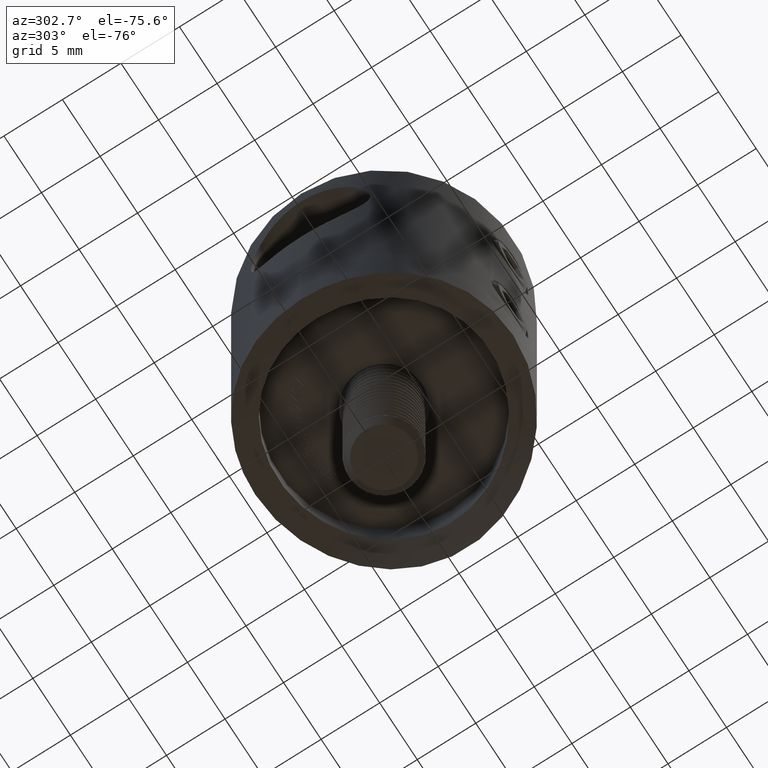
[diagram: clean part render]
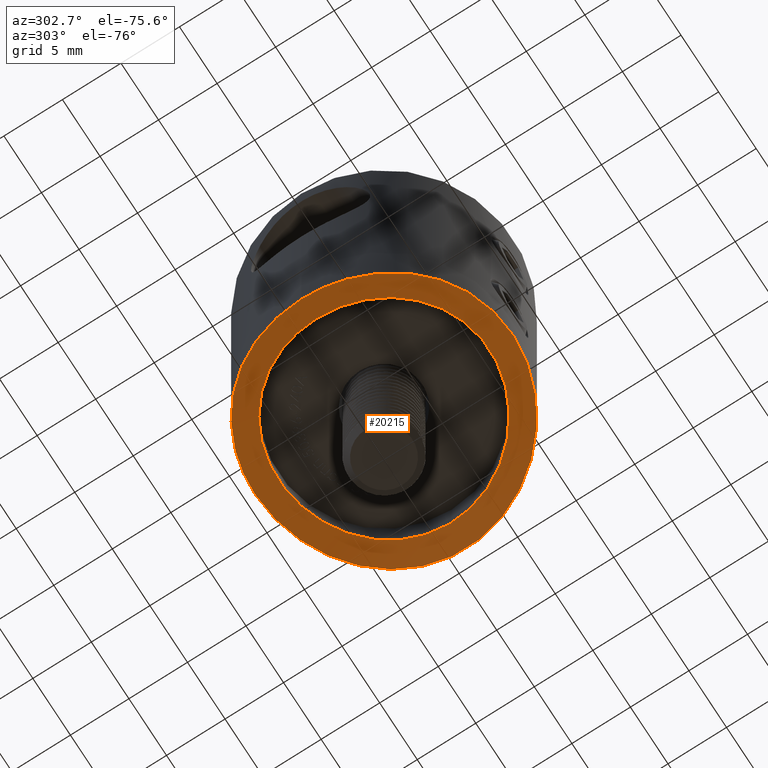
[diagram: same view with one face highlighted and labeled with its STEP entity id]
A machine part, auxiliary view. The second image highlights one B-rep face of the part: STEP entity #20215.
In plain terms, the highlighted cylindrical surface (partial cylindrical patch) has radius 24.15 mm, axis along (0, 1, 0).
Its self-contained STEP definition (entity closure, byte-faithful):
#199 = CARTESIAN_POINT ( 'NONE',  ( -5.955481066850367700, 6.772949348052264000, -4.841934236872190500 ) ) ;
#276 = CARTESIAN_POINT ( 'NONE',  ( -2.917733927521076500, 8.519060988494834100, -4.275214090765128800 ) ) ;
#338 = CARTESIAN_POINT ( 'NONE',  ( -10.62705216481736800, 2.862935051191474800, -6.563553041863481300 ) ) ;
#357 = CARTESIAN_POINT ( 'NONE',  ( 8.705901119531875000, -2.358470419391077500, -5.723444286782619600 ) ) ;
#386 = EDGE_LOOP ( 'NONE', ( #20394 ) ) ;
#414 = CARTESIAN_POINT ( 'NONE',  ( -8.716423519987754900, -6.719375433729545900, -5.726576771034943100 ) ) ;
#434 = CARTESIAN_POINT ( 'NONE',  ( 8.069453861627772900, -3.996355480198275200, -5.487570248137029000 ) ) ;
#490 = CARTESIAN_POINT ( 'NONE',  ( -4.586925025805655300, 10.00440817799939500, -4.537239825038970900 ) ) ;
#565 = CARTESIAN_POINT ( 'NONE',  ( -10.91125768141332700, 1.441902811846360800, -6.705428076010765200 ) ) ;
#643 = CARTESIAN_POINT ( 'NONE',  ( -5.540353854638258500, 9.509623176622014300, -4.741887871326858000 ) ) ;
#729 = CARTESIAN_POINT ( 'NONE',  ( -8.999999999999998200, 0.0000000000000000000, -5.839678717162483300 ) ) ;
#935 = DIRECTION ( 'NONE',  ( -0.0000000000000000000, 1.000000000000000000, -0.0000000000000000000 ) ) ;
#1604 = VERTEX_POINT ( 'NONE', #11507 ) ;
#1617 = CARTESIAN_POINT ( 'NONE',  ( -5.952661801843511600, -6.775232575217426500, -4.841242703613031200 ) ) ;
#1697 = CARTESIAN_POINT ( 'NONE',  ( -2.351721421240856400, -8.692363999212457100, -4.213088095409313300 ) ) ;
#1775 = CARTESIAN_POINT ( 'NONE',  ( -8.419670604379318100, -3.193089259846869400, -5.614933931759304100 ) ) ;
#1914 = CARTESIAN_POINT ( 'NONE',  ( 10.92542246693628300, 1.470415726918199400, -6.712044220759203500 ) ) ;
#1935 = CARTESIAN_POINT ( 'NONE',  ( 4.001728315777034700, 8.066765406957495400, -4.432402174724337000 ) ) ;
#1992 = CARTESIAN_POINT ( 'NONE',  ( 6.430387103793345100, 8.931858968524522900, -4.969817532866156500 ) ) ;
#2013 = CARTESIAN_POINT ( 'NONE',  ( 8.882115221764351500, -1.482161746522389300, -5.792606766629381500 ) ) ;
#2088 = CARTESIAN_POINT ( 'NONE',  ( 8.985262616755441900, -0.5942851337835611800, -5.833743530354812600 ) ) ;
#2147 = CARTESIAN_POINT ( 'NONE',  ( -8.287454945787276400, 7.267723683256857500, -5.560356767623069600 ) ) ;
#2164 = CARTESIAN_POINT ( 'NONE',  ( 8.707357408751676100, 2.352902298193428900, -5.724009966248377000 ) ) ;
#2211 = CARTESIAN_POINT ( 'NONE',  ( -7.286900198823986800, 8.270598678874801400, -5.219522258898293500 ) ) ;
#2226 = CARTESIAN_POINT ( 'NONE',  ( 4.770326956018101900, 7.637333640570379800, -4.574534365057011200 ) ) ;
#2285 = CARTESIAN_POINT ( 'NONE',  ( -3.565228295584622800, -10.41258127874622700, -4.362028299791797200 ) ) ;
#2361 = CARTESIAN_POINT ( 'NONE',  ( -4.905336668675545300, -9.872005679843932000, -4.593797026062112800 ) ) ;
#2377 = ORIENTED_EDGE ( 'NONE', *, *, #5464, .T. ) ;
#2442 = CARTESIAN_POINT ( 'NONE',  ( -3.596995005784352300, 10.41987925390194600, -4.359967933075471300 ) ) ;
#2550 = CYLINDRICAL_SURFACE ( 'NONE', #10816, 24.14999999999999900 ) ;
#3352 = CARTESIAN_POINT ( 'NONE',  ( -8.694337786926587000, -2.344497970514962200, -5.719141017561555400 ) ) ;
#3508 = CARTESIAN_POINT ( 'NONE',  ( -1.187097216402585300, -8.941112256603400300, -4.122128428594585600 ) ) ;
#3565 = CARTESIAN_POINT ( 'NONE',  ( 2.876291431198781700, 10.62353627960885100, -4.269323796662688700 ) ) ;
#3640 = CARTESIAN_POINT ( 'NONE',  ( 8.718833033539631600, 6.716238922139558200, -5.727511786381569400 ) ) ;
#3723 = CARTESIAN_POINT ( 'NONE',  ( 10.70943195267321000, 2.537678441767839300, -6.604283540190819800 ) ) ;
#3743 = CARTESIAN_POINT ( 'NONE',  ( -7.156723709875413100, 5.488278765217980700, -5.182273233512183300 ) ) ;
#3818 = CARTESIAN_POINT ( 'NONE',  ( 8.067936344374585300, 3.999436646844154000, -5.487030815150164100 ) ) ;
#3899 = CARTESIAN_POINT ( 'NONE',  ( 7.790570761488595500, -4.515966115826064000, -5.390618970679129000 ) ) ;
#3977 = CARTESIAN_POINT ( 'NONE',  ( 8.195380129416308900, 3.731275948257880300, -5.532764901327007000 ) ) ;
#4029 = CARTESIAN_POINT ( 'NONE',  ( 7.290707075603656100, -8.267210776175723200, -5.220738157115473400 ) ) ;
#4051 = CARTESIAN_POINT ( 'NONE',  ( 6.161363320520977500, -6.566798266884279500, -4.898215239517438300 ) ) ;
#4107 = CARTESIAN_POINT ( 'NONE',  ( -10.99852675633061600, -0.7508881387390133900, -6.749885771269953600 ) ) ;
#4176 = CARTESIAN_POINT ( 'NONE',  ( -9.537197385377799800, 5.527080732680000000, -6.058844551614365400 ) ) ;
#4254 = CARTESIAN_POINT ( 'NONE',  ( -1.466852744322146900, 10.92647259168840400, -4.133755088964415200 ) ) ;
#4542 = DIRECTION ( 'NONE',  ( 0.0000000000000000000, 0.0000000000000000000, 1.000000000000000000 ) ) ;
#4880 = B_SPLINE_CURVE_WITH_KNOTS ( 'NONE', 3,
 ( #14353, #10796, #16475, #16165, #3565, #5361, #11034, #14509, #12859, #1992, #17970, #21556, #14675, #7173, #12618, #3640, #5514, #19754, #16236, #5437, #10874, #12699, #3723, #1914, #16316, #7331, #19905, #9149, #21710, #16396, #10951, #5586, #16694, #13168, #13087, #14976, #14823, #4029, #7645, #20056, #7487, #9310, #16620, #5977, #9385, #21937, #22164, #12935, #5821, #22091, #11260, #2285, #5746, #2361, #18422, #14894, #18499, #7562, #7722, #20205, #11337, #414, #9618, #21862, #20359, #20287, #11183, #7808, #9460, #9537, #4107, #18350, #5897, #565, #11107, #16548, #338, #13017, #20132, #16776, #4176, #18584, #2147, #2211, #22015, #11418, #643, #13242, #490, #2442, #15052, #4254, #16851, #6059 ),
 .UNSPECIFIED., .T., .F.,
 ( 4, 2, 2, 2, 2, 2, 2, 2, 2, 2, 2, 2, 2, 2, 2, 2, 2, 2, 2, 2, 2, 2, 2, 2, 2, 2, 2, 2, 2, 2, 2, 2, 2, 2, 2, 2, 2, 2, 2, 2, 2, 2, 2, 2, 2, 2, 4 ),
 ( 0.0000000000000000000, 0.002178242910254783800, 0.003267364365382174600, 0.004356485820509565900, 0.006534728730764347500, 0.007623850185891738400, 0.008712971641019128300, 0.009802093096146520900, 0.01089121455127391300, 0.01306945746152869300, 0.01415857891665608200, 0.01524770037178347300, 0.01742594328203825300, 0.01851506473716564200, 0.01960418619229303100, 0.02069330764742042400, 0.02178242910254781600, 0.02396067201280259100, 0.02613891492305737300, 0.02831715783331215400, 0.02940627928843954700, 0.03049540074356694000, 0.03267364365382172100, 0.03485188656407651300, 0.03703012947433130500, 0.03811925092945869800, 0.03920837238458609000, 0.04138661529484088200, 0.04247573674996828900, 0.04356485820509568100, 0.04465397966022306000, 0.04574310111535045300, 0.04792134402560523800, 0.04901046548073263000, 0.05009958693586002300, 0.05227782984611480800, 0.05336695130124220100, 0.05445607275636959300, 0.05554519421149698600, 0.05663431566662437800, 0.05881255857687917000, 0.06099080148713395500, 0.06316904439738875400, 0.06425816585251614700, 0.06534728730764354000, 0.06752553021789832500, 0.06970377312815311000 ),
 .UNSPECIFIED. ) ;
#5203 = EDGE_CURVE ( 'NONE', #1604, #1604, #4880, .T. ) ;
#5306 = CARTESIAN_POINT ( 'NONE',  ( 0.2906703609102728200, -9.000195386762026600, -4.099927185071580400 ) ) ;
#5361 = CARTESIAN_POINT ( 'NONE',  ( 3.572521488984532500, 10.41007520107788100, -4.363121305259665100 ) ) ;
#5437 = CARTESIAN_POINT ( 'NONE',  ( 10.28238546720194100, 3.924291775033997600, -6.397810133528087900 ) ) ;
#5464 = EDGE_CURVE ( 'NONE', #10314, #10314, #10794, .T. ) ;
#5514 = CARTESIAN_POINT ( 'NONE',  ( 8.933123202535501400, 6.428625713320006000, -5.811903161856983000 ) ) ;
#5531 = CARTESIAN_POINT ( 'NONE',  ( -8.422403218693784100, 3.185992612804383400, -5.615948855268447600 ) ) ;
#5586 = CARTESIAN_POINT ( 'NONE',  ( 10.41683527128108500, -3.552468401192897800, -6.461798316812489100 ) ) ;
#5609 = CARTESIAN_POINT ( 'NONE',  ( 2.913076722084210900, -8.536234980370069900, -4.269928068814183000 ) ) ;
#5688 = CARTESIAN_POINT ( 'NONE',  ( 0.5906865844048850800, 9.000163910465412100, -4.099938915356520200 ) ) ;
#5746 = CARTESIAN_POINT ( 'NONE',  ( -3.908413871923572800, -10.28853765117940900, -4.415975103855082300 ) ) ;
#5765 = CARTESIAN_POINT ( 'NONE',  ( 1.185638266595394000, -8.926579602596486800, -4.127281001638810000 ) ) ;
#5821 = CARTESIAN_POINT ( 'NONE',  ( -1.451469659101266400, -10.92784896077696800, -4.133113888468627400 ) ) ;
#5840 = CARTESIAN_POINT ( 'NONE',  ( 1.193415101730544800, 8.940075068365306500, -4.122511259469772100 ) ) ;
#5897 = CARTESIAN_POINT ( 'NONE',  ( -10.98308985131462000, 0.7115934421855739700, -6.741958227302602000 ) ) ;
#5977 = CARTESIAN_POINT ( 'NONE',  ( 3.604139742779364700, -10.41738169717739000, -4.361059835529935900 ) ) ;
#6059 = CARTESIAN_POINT ( 'NONE',  ( 1.084202172485504400E-016, 11.00000000000000200, -4.100000000000000500 ) ) ;
#6077 = CARTESIAN_POINT ( 'NONE',  ( -8.940442806010899800, 1.189288021549053600, -5.815509713986338100 ) ) ;
#6110 = CARTESIAN_POINT ( 'NONE',  ( 0.0000000000000000000, -11.00000000000000000, -28.24999999999999600 ) ) ;
#7035 = CARTESIAN_POINT ( 'NONE',  ( -4.521487152679823900, -7.804139365119503700, -4.521749741492953100 ) ) ;
#7173 = CARTESIAN_POINT ( 'NONE',  ( 8.030195500825493900, 7.526012631049382200, -5.472640476603284100 ) ) ;
#7331 = CARTESIAN_POINT ( 'NONE',  ( 11.00070343088892400, -0.3423925993475632800, -6.750999449061152000 ) ) ;
#7351 = CARTESIAN_POINT ( 'NONE',  ( 8.927272823039375600, 1.179906985632502200, -5.810586266342657100 ) ) ;
#7428 = CARTESIAN_POINT ( 'NONE',  ( 8.195336370065385600, -3.731252927472446400, -5.532752145243343000 ) ) ;
#7487 = CARTESIAN_POINT ( 'NONE',  ( 5.545858272137867800, -9.506407200695708300, -4.743189290804292700 ) ) ;
#7506 = CARTESIAN_POINT ( 'NONE',  ( -8.767329222801745200, 2.054365885241586900, -5.747549438134414300 ) ) ;
#7562 = CARTESIAN_POINT ( 'NONE',  ( -7.264663726758620000, -8.267492795645566200, -5.216770539457563400 ) ) ;
#7584 = CARTESIAN_POINT ( 'NONE',  ( 4.010437584248245800, -8.078967385235042500, -4.428869544111807800 ) ) ;
#7645 = CARTESIAN_POINT ( 'NONE',  ( 6.745604653960873200, -8.718335803782917300, -5.053103741118685700 ) ) ;
#7664 = CARTESIAN_POINT ( 'NONE',  ( -3.194648966316182100, 8.419054753470906100, -4.310665505388048900 ) ) ;
#7722 = CARTESIAN_POINT ( 'NONE',  ( -7.526947822376011600, -8.029327655024582500, -5.301419780141284100 ) ) ;
#7761 = EDGE_LOOP ( 'NONE', ( #2377 ) ) ;
#7808 = CARTESIAN_POINT ( 'NONE',  ( -10.61836740494991300, -2.895152067062687400, -6.559290493641392500 ) ) ;
#7982 = CARTESIAN_POINT ( 'NONE',  ( -9.000000000000001800, 0.6005012153812466800, -5.839678717162483300 ) ) ;
#8757 = FACE_BOUND ( 'NONE', #7761, .T. ) ;
#8862 = CARTESIAN_POINT ( 'NONE',  ( -3.195005881903785600, -8.418891798475938200, -4.310721501395904400 ) ) ;
#9149 = CARTESIAN_POINT ( 'NONE',  ( 10.91135686389293200, -1.441101214652544100, -6.705478390493702500 ) ) ;
#9169 = CARTESIAN_POINT ( 'NONE',  ( 5.496279477316528900, 7.150555889302125000, -4.728559119349281300 ) ) ;
#9254 = CARTESIAN_POINT ( 'NONE',  ( -2.351814618608055100, 8.692326466326703000, -4.213101309337846900 ) ) ;
#9310 = CARTESIAN_POINT ( 'NONE',  ( 4.915602178863213800, -9.847089776133577400, -4.603360726907658000 ) ) ;
#9332 = CARTESIAN_POINT ( 'NONE',  ( 7.788603845762029500, 4.519373903847889700, -5.389947220072206100 ) ) ;
#9385 = CARTESIAN_POINT ( 'NONE',  ( 2.914404154908519600, -10.63227046958382400, -4.265619129539510700 ) ) ;
#9403 = CARTESIAN_POINT ( 'NONE',  ( 7.637359333342634400, 4.770311581830537100, -5.338813908932394300 ) ) ;
#9460 = CARTESIAN_POINT ( 'NONE',  ( -10.70911191687734400, -2.539057930661412500, -6.604124872347297200 ) ) ;
#9479 = CARTESIAN_POINT ( 'NONE',  ( -6.780315631945662800, 5.947093200891345100, -5.067407016476285400 ) ) ;
#9537 = CARTESIAN_POINT ( 'NONE',  ( -10.92534176227381900, -1.471217275371408800, -6.712001956122559700 ) ) ;
#9618 = CARTESIAN_POINT ( 'NONE',  ( -8.930915443111141300, -6.431704276433423600, -5.811022174851143700 ) ) ;
#10314 = VERTEX_POINT ( 'NONE', #729 ) ;
#10586 = CARTESIAN_POINT ( 'NONE',  ( -6.765097472201769200, -5.942992827749921300, -5.066090446804200700 ) ) ;
#10659 = CARTESIAN_POINT ( 'NONE',  ( -2.918327195086877400, -8.518870342970609900, -4.275282192805836900 ) ) ;
#10794 = B_SPLINE_CURVE_WITH_KNOTS ( 'NONE', 3,
 ( #23299, #14132, #21420, #12406, #3352, #12479, #1775, #17754, #17985, #14210, #19532, #10586, #19774, #1617, #10817, #7035, #19614, #8862, #10659, #1697, #14293, #3508, #16106, #5306, #11126, #5765, #12721, #11202, #5609, #7584, #16334, #20151, #21730, #18138, #4051, #16570, #12796, #18214, #3899, #434, #7428, #20077, #357, #2013, #12956, #2088, #18365, #14770, #7351, #14607, #2164, #13033, #3977, #3818, #9332, #9403, #14842, #21956, #21802, #9169, #2226, #10973, #1935, #16415, #20000, #16640, #5840, #5688, #11282, #21879, #18443, #9254, #276, #7664, #11049, #12879, #14532, #14693, #20228, #199, #9479, #3743, #18291, #22036, #5531, #19922, #16493, #7506, #6077, #7982, #15228 ),
 .UNSPECIFIED., .T., .F.,
 ( 4, 2, 2, 2, 2, 2, 2, 2, 2, 2, 2, 2, 2, 2, 2, 2, 2, 2, 2, 2, 2, 2, 2, 1, 2, 2, 2, 2, 2, 2, 2, 2, 2, 2, 2, 2, 2, 2, 2, 2, 2, 2, 2, 2, 2, 4 ),
 ( 0.0000000000000000000, 0.001774529102768363400, 0.002661793654152544600, 0.003549058205536726000, 0.005323587308305088300, 0.006210851859689271000, 0.007098116411073453700, 0.008872645513841814800, 0.01064717461661017500, 0.01153443916799435500, 0.01242170371937853500, 0.01419623282214689200, 0.01508349737353107400, 0.01597076192491525200, 0.01774529102768361200, 0.01951982013045197200, 0.02040708468183615200, 0.02129434923322032900, 0.02306887833598868600, 0.02395614288737286600, 0.02484340743875704200, 0.02661793654152539900, 0.02750520109290957200, 0.02839246564429374600, 0.02927973019567792600, 0.03016699474706210200, 0.03194152384983045500, 0.03282878840121462900, 0.03371605295259880200, 0.03549058205536715500, 0.03726511115813550800, 0.03815237570951968100, 0.03903964026090385500, 0.04081416936367221500, 0.04258869846644057500, 0.04436322756920892800, 0.04525049212059310100, 0.04613775667197728100, 0.04702502122336145500, 0.04791228577474563500, 0.04968681487751399500, 0.05146134398028234800, 0.05323587308305070800, 0.05412313763443488800, 0.05501040218581906800, 0.05678493128858742900 ),
 .UNSPECIFIED. ) ;
#10796 = CARTESIAN_POINT ( 'NONE',  ( 0.7372117133655116100, 11.00000000000000400, -4.100000000000000500 ) ) ;
#10816 = AXIS2_PLACEMENT_3D ( 'NONE', #6110, #935, #4542 ) ;
#10817 = CARTESIAN_POINT ( 'NONE',  ( -5.502073847852488000, -7.146720973623800400, -4.729777004140325800 ) ) ;
#10874 = CARTESIAN_POINT ( 'NONE',  ( 10.40516368226898600, 3.586650783726629000, -6.456213165125378200 ) ) ;
#10951 = CARTESIAN_POINT ( 'NONE',  ( 10.62746186526367800, -2.861388319128643300, -6.563754498331739700 ) ) ;
#10973 = CARTESIAN_POINT ( 'NONE',  ( 4.519950738165869500, 7.788233366350268300, -4.525290496943454400 ) ) ;
#11008 = FACE_OUTER_BOUND ( 'NONE', #386, .T. ) ;
#11034 = CARTESIAN_POINT ( 'NONE',  ( 3.915353489643147000, 10.28589062110507700, -4.417118280347359900 ) ) ;
#11049 = CARTESIAN_POINT ( 'NONE',  ( -3.736767436266001500, 8.192852622083968600, -4.389277312072781700 ) ) ;
#11107 = CARTESIAN_POINT ( 'NONE',  ( -10.85744416824285200, 1.801988555569571600, -6.678150001960482000 ) ) ;
#11126 = CARTESIAN_POINT ( 'NONE',  ( 0.5900211280211912200, -8.985623883136636200, -4.105369436630432700 ) ) ;
#11183 = CARTESIAN_POINT ( 'NONE',  ( -10.40451675480509400, -3.588546075627322200, -6.455903635738449600 ) ) ;
#11202 = CARTESIAN_POINT ( 'NONE',  ( 2.348900928940129700, -8.708168648184193100, -4.207475028667589700 ) ) ;
#11260 = CARTESIAN_POINT ( 'NONE',  ( -2.868514108294105500, -10.62564485086205400, -4.268388887314036300 ) ) ;
#11282 = CARTESIAN_POINT ( 'NONE',  ( -0.5956709152723410600, 8.999835399435847100, -4.100061341823122900 ) ) ;
#11337 = CARTESIAN_POINT ( 'NONE',  ( -8.264994150257553700, -7.267456012623145300, -5.557038434195357400 ) ) ;
#11418 = CARTESIAN_POINT ( 'NONE',  ( -5.850127406137173300, 9.322248414509996200, -4.817269490842363700 ) ) ;
#11507 = CARTESIAN_POINT ( 'NONE',  ( 0.0000000000000000000, 11.00000000000000000, -4.099999999999999600 ) ) ;
#12406 = CARTESIAN_POINT ( 'NONE',  ( -8.766555754892122500, -2.057810665755193100, -5.747247263574445600 ) ) ;
#12479 = CARTESIAN_POINT ( 'NONE',  ( -8.520884832321961300, -2.912507847411545600, -5.652972812469067200 ) ) ;
#12618 = CARTESIAN_POINT ( 'NONE',  ( 8.267843408091849300, 7.264205400818201300, -5.558078746421775100 ) ) ;
#12699 = CARTESIAN_POINT ( 'NONE',  ( 10.61878898511370800, 2.893581792319689100, -6.559497554266020100 ) ) ;
#12721 = CARTESIAN_POINT ( 'NONE',  ( 1.479380313472691100, -8.882500666079790700, -4.143602622314364000 ) ) ;
#12796 = CARTESIAN_POINT ( 'NONE',  ( 7.149256462661933000, -5.498200193310328400, -5.179933283928610500 ) ) ;
#12859 = CARTESIAN_POINT ( 'NONE',  ( 5.539466972768920500, 9.530280027920332100, -4.735878674968243600 ) ) ;
#12879 = CARTESIAN_POINT ( 'NONE',  ( -4.001970359664289500, 8.066656255544257800, -4.432439967349232300 ) ) ;
#12935 = CARTESIAN_POINT ( 'NONE',  ( -0.7277201965022432900, -11.00065391826050700, -4.099702149126820800 ) ) ;
#12956 = CARTESIAN_POINT ( 'NONE',  ( 8.926573675138055100, -1.185074484845290800, -5.810307915942676300 ) ) ;
#13017 = CARTESIAN_POINT ( 'NONE',  ( -10.41619455275248500, 3.554367153277743900, -6.461491321776340300 ) ) ;
#13033 = CARTESIAN_POINT ( 'NONE',  ( 8.534879596344312700, 2.915910311827767400, -5.657159668338467300 ) ) ;
#13087 = CARTESIAN_POINT ( 'NONE',  ( 9.538757656813460900, -5.524335899438257000, -6.059523499308427900 ) ) ;
#13168 = CARTESIAN_POINT ( 'NONE',  ( 9.876592949303894600, -4.896551791543043200, -6.209823939384729200 ) ) ;
#13242 = CARTESIAN_POINT ( 'NONE',  ( -4.909570765580929800, 9.850105009272978100, -4.602104288401741300 ) ) ;
#14132 = CARTESIAN_POINT ( 'NONE',  ( -8.999999999999994700, -0.6005012153812484500, -5.839678717162481500 ) ) ;
#14210 = CARTESIAN_POINT ( 'NONE',  ( -7.313600916143589500, -5.253298762340662600, -5.233415069170491500 ) ) ;
#14293 = CARTESIAN_POINT ( 'NONE',  ( -2.060525594262084100, -8.765980054847519300, -4.186293804418925300 ) ) ;
#14353 = CARTESIAN_POINT ( 'NONE',  ( 1.084202172485504400E-016, 11.00000000000000200, -4.100000000000000500 ) ) ;
#14509 = CARTESIAN_POINT ( 'NONE',  ( 4.911361269540279300, 9.868975922194374900, -4.595063802087429900 ) ) ;
#14532 = CARTESIAN_POINT ( 'NONE',  ( -4.520702814488417200, 7.787808161981098800, -4.525430905248642300 ) ) ;
#14607 = CARTESIAN_POINT ( 'NONE',  ( 8.882866956332655700, 1.477575785954844200, -5.792904803888850700 ) ) ;
#14675 = CARTESIAN_POINT ( 'NONE',  ( 7.530524187717796600, 8.025964824392776400, -5.302595961683456600 ) ) ;
#14693 = CARTESIAN_POINT ( 'NONE',  ( -4.775166543345733300, 7.634395306813172700, -4.575491253734487200 ) ) ;
#14770 = CARTESIAN_POINT ( 'NONE',  ( 8.985677232262688100, 0.5882050912035665700, -5.833909942971249800 ) ) ;
#14823 = CARTESIAN_POINT ( 'NONE',  ( 8.290300556253306800, -7.264440815848068700, -5.561407549665391400 ) ) ;
#14842 = CARTESIAN_POINT ( 'NONE',  ( 7.149845538636008700, 5.497292922067794400, -5.180127188947302800 ) ) ;
#14894 = CARTESIAN_POINT ( 'NONE',  ( -6.425701906187426500, -8.935237515431518700, -4.968520578984717800 ) ) ;
#14976 = CARTESIAN_POINT ( 'NONE',  ( 8.747644661512161700, -6.707078174671706500, -5.735918676546444500 ) ) ;
#15052 = CARTESIAN_POINT ( 'NONE',  ( -2.906495036939129600, 10.63446034694245800, -4.264645881646374400 ) ) ;
#15228 = CARTESIAN_POINT ( 'NONE',  ( -8.999999999999998200, -8.673617379884035500E-016, -5.839678717162482400 ) ) ;
#16106 = CARTESIAN_POINT ( 'NONE',  ( -0.5993049066174209700, -8.999603250328354100, -4.100147856992379900 ) ) ;
#16165 = CARTESIAN_POINT ( 'NONE',  ( 2.524794415566042000, 10.71244282600650000, -4.229699050896370800 ) ) ;
#16236 = CARTESIAN_POINT ( 'NONE',  ( 9.868128527926108600, 4.912240495255837800, -6.206063174147312000 ) ) ;
#16316 = CARTESIAN_POINT ( 'NONE',  ( 10.99852774464228100, 0.7504812563760635500, -6.749886276931105700 ) ) ;
#16334 = CARTESIAN_POINT ( 'NONE',  ( 4.527344692388734200, -7.800255706479116000, -4.522982485441202600 ) ) ;
#16396 = CARTESIAN_POINT ( 'NONE',  ( 10.71565638503099500, -2.511139484501886600, -6.607368442393177300 ) ) ;
#16415 = CARTESIAN_POINT ( 'NONE',  ( 3.732413406636363900, 8.194897769588534300, -4.388576885281986000 ) ) ;
#16475 = CARTESIAN_POINT ( 'NONE',  ( 1.460239697493577800, 10.92665422676079600, -4.133657447046557500 ) ) ;
#16493 = CARTESIAN_POINT ( 'NONE',  ( -8.695549330617566900, 2.339791131305400700, -5.719611579249654000 ) ) ;
#16548 = CARTESIAN_POINT ( 'NONE',  ( -10.71534296435754800, 2.512505080016278500, -6.607212948406543200 ) ) ;
#16570 = CARTESIAN_POINT ( 'NONE',  ( 6.780329729896142700, -5.947106736518968300, -5.067406818404594800 ) ) ;
#16620 = CARTESIAN_POINT ( 'NONE',  ( 4.593227796435100700, -10.00150861558385200, -4.538463677424142700 ) ) ;
#16640 = CARTESIAN_POINT ( 'NONE',  ( 2.352093982517698700, 8.707286358587818900, -4.207795308523482300 ) ) ;
#16694 = CARTESIAN_POINT ( 'NONE',  ( 10.29373922574088800, -3.894837568605289400, -6.403148510146072800 ) ) ;
#16776 = CARTESIAN_POINT ( 'NONE',  ( -9.875379690077004100, 4.899052887441254000, -6.209275958273811300 ) ) ;
#16851 = CARTESIAN_POINT ( 'NONE',  ( -0.7372117133655113900, 11.00000000000000000, -4.100000000000000500 ) ) ;
#17754 = CARTESIAN_POINT ( 'NONE',  ( -8.079656784023901700, -4.008220887472560000, -5.490388354546575500 ) ) ;
#17970 = CARTESIAN_POINT ( 'NONE',  ( 6.719195962510457100, 8.716594843496384500, -5.051783569162509500 ) ) ;
#17985 = CARTESIAN_POINT ( 'NONE',  ( -7.803055254637836700, -4.522825851298528700, -5.392778173017484600 ) ) ;
#18138 = CARTESIAN_POINT ( 'NONE',  ( 5.942811789027445900, -6.765291272938850600, -4.841455505128040600 ) ) ;
#18214 = CARTESIAN_POINT ( 'NONE',  ( 7.637860410970756900, -4.769549944825334000, -5.338978091194833900 ) ) ;
#18291 = CARTESIAN_POINT ( 'NONE',  ( -7.804986782564452800, 4.519079484610733400, -5.393471528755168400 ) ) ;
#18350 = CARTESIAN_POINT ( 'NONE',  ( -11.00070391701046900, 0.3425920050517579100, -6.750999697781043800 ) ) ;
#18365 = CARTESIAN_POINT ( 'NONE',  ( 9.014528821124315500, -0.003266750181467113200, -5.845530242525698300 ) ) ;
#18422 = CARTESIAN_POINT ( 'NONE',  ( -5.534000072706375800, -9.533483150072068900, -4.734578267259570900 ) ) ;
#18443 = CARTESIAN_POINT ( 'NONE',  ( -2.061066377919867700, 8.765889289412577100, -4.186327275800009000 ) ) ;
#18499 = CARTESIAN_POINT ( 'NONE',  ( -6.714799822728051200, -8.719990798712176500, -5.050507294650302900 ) ) ;
#18584 = CARTESIAN_POINT ( 'NONE',  ( -8.745256739596984000, 6.710233971461283500, -5.734982819002643100 ) ) ;
#19532 = CARTESIAN_POINT ( 'NONE',  ( -7.137023358012964300, -5.490774548846016700, -5.177871715718736400 ) ) ;
#19614 = CARTESIAN_POINT ( 'NONE',  ( -4.006012131078700900, -8.080536715158922700, -4.428311619825038300 ) ) ;
#19754 = CARTESIAN_POINT ( 'NONE',  ( 9.531225877889175600, 5.537816186838021800, -6.056222657174747500 ) ) ;
#19774 = CARTESIAN_POINT ( 'NONE',  ( -6.569289279463160500, -6.158646613224688900, -5.009682908041043900 ) ) ;
#19905 = CARTESIAN_POINT ( 'NONE',  ( 10.98310959578544100, -0.7111855799031482400, -6.741968393163617200 ) ) ;
#19922 = CARTESIAN_POINT ( 'NONE',  ( -8.523471093179329800, 2.904761818648027700, -5.653951206575491100 ) ) ;
#20000 = CARTESIAN_POINT ( 'NONE',  ( 2.914316582453931200, 8.535560674344605300, -4.270155328947893700 ) ) ;
#20056 = CARTESIAN_POINT ( 'NONE',  ( 5.855365718019127600, -9.318950189909356800, -4.818581736129233100 ) ) ;
#20077 = CARTESIAN_POINT ( 'NONE',  ( 8.533226243509590200, -2.920136364321387100, -5.656547339352299800 ) ) ;
#20132 = CARTESIAN_POINT ( 'NONE',  ( -10.29295847912959300, 3.896917570490445700, -6.402779562983477400 ) ) ;
#20151 = CARTESIAN_POINT ( 'NONE',  ( 5.254691621820182200, -7.312552613288528600, -4.677300886734611800 ) ) ;
#20205 = CARTESIAN_POINT ( 'NONE',  ( -8.027113573993681000, -7.529308984410178600, -5.471551297371718200 ) ) ;
#20215 = ADVANCED_FACE ( 'NONE', ( #8757, #11008 ), #2550, .F. ) ;
#20228 = CARTESIAN_POINT ( 'NONE',  ( -5.506321885039311900, 7.143195935143809000, -4.730832521683521600 ) ) ;
#20287 = CARTESIAN_POINT ( 'NONE',  ( -10.28160978047289800, -3.926340929373009400, -6.397444065218972600 ) ) ;
#20359 = CARTESIAN_POINT ( 'NONE',  ( -9.866918231013452000, -4.914726412409633500, -6.205517087826901700 ) ) ;
#20394 = ORIENTED_EDGE ( 'NONE', *, *, #5203, .T. ) ;
#21420 = CARTESIAN_POINT ( 'NONE',  ( -8.940514080942433500, -1.189767257652660600, -5.815534772367986000 ) ) ;
#21556 = CARTESIAN_POINT ( 'NONE',  ( 7.268501839163962000, 8.264109211666708500, -5.217984869563292000 ) ) ;
#21710 = CARTESIAN_POINT ( 'NONE',  ( 10.85760233114000800, -1.800995527896463800, -6.678229926146595800 ) ) ;
#21730 = CARTESIAN_POINT ( 'NONE',  ( 5.489310063391047700, -7.138182751615425500, -4.730977011020257800 ) ) ;
#21802 = CARTESIAN_POINT ( 'NONE',  ( 5.947560557959440600, 6.780348492168895900, -4.839847025014655900 ) ) ;
#21862 = CARTESIAN_POINT ( 'NONE',  ( -9.529662586467784600, -5.540560729208611000, -6.055542652586228600 ) ) ;
#21879 = CARTESIAN_POINT ( 'NONE',  ( -1.184475436480215200, 8.941602570797618600, -4.121948352451481100 ) ) ;
#21937 = CARTESIAN_POINT ( 'NONE',  ( 1.475701006764952500, -10.92525667685501400, -4.134308347963729700 ) ) ;
#21956 = CARTESIAN_POINT ( 'NONE',  ( 6.780162620850766200, 5.947772448628976200, -5.067288041783635700 ) ) ;
#22015 = CARTESIAN_POINT ( 'NONE',  ( -6.741267480389036700, 8.721727892873946800, -5.051827401943363300 ) ) ;
#22036 = CARTESIAN_POINT ( 'NONE',  ( -8.081491491131696800, 4.004896366598776700, -5.491032886329954900 ) ) ;
#22091 = CARTESIAN_POINT ( 'NONE',  ( -2.516771802399748700, -10.71433719204585000, -4.228853593830872400 ) ) ;
#22164 = CARTESIAN_POINT ( 'NONE',  ( 0.7473565884534748600, -10.99933731837663200, -4.100301842466392600 ) ) ;
#23299 = CARTESIAN_POINT ( 'NONE',  ( -8.999999999999998200, -8.673617379884035500E-016, -5.839678717162482400 ) ) ;